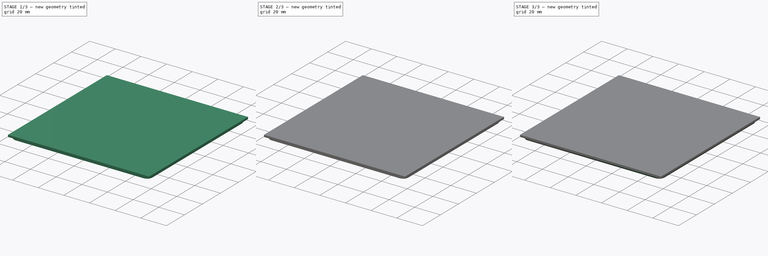
[diagram: build sequence overview — one tinted view per stage of 3, left to right]
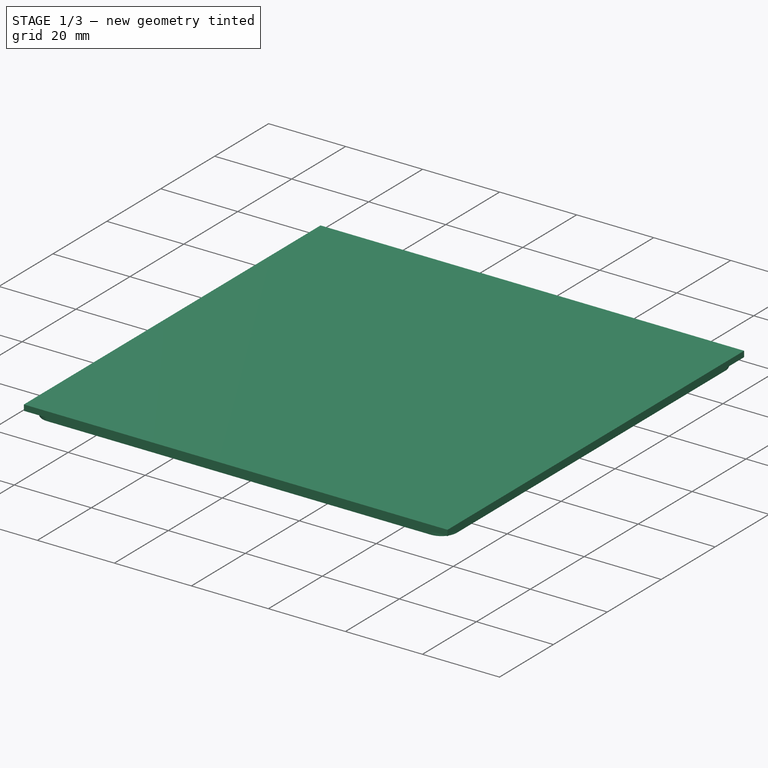
[diagram: stage 1 of 3 — iso view after this stage's code; geometry added in this stage tinted green]
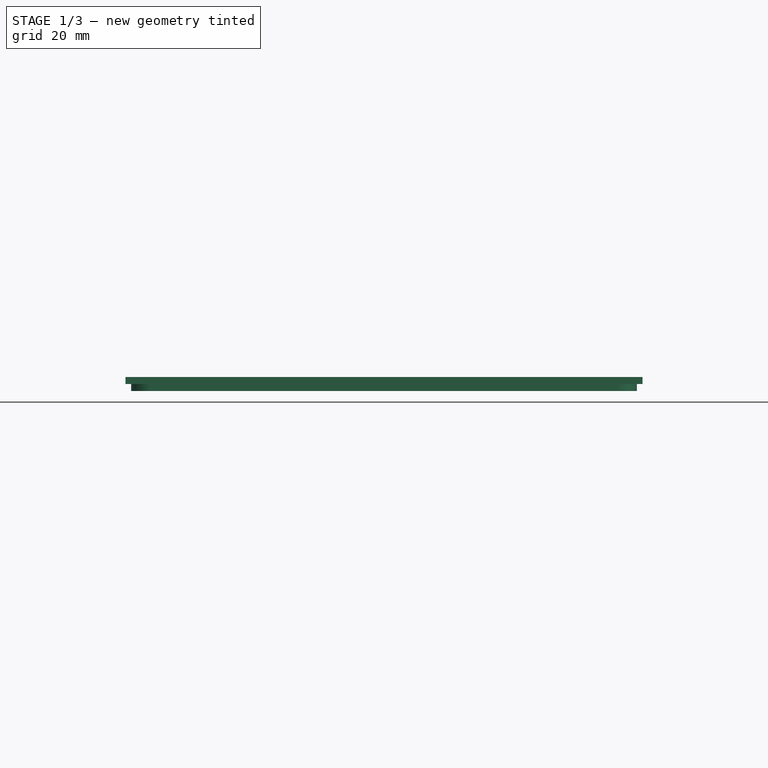
[diagram: stage 1 of 3 — front view after this stage's code; geometry added in this stage tinted green]
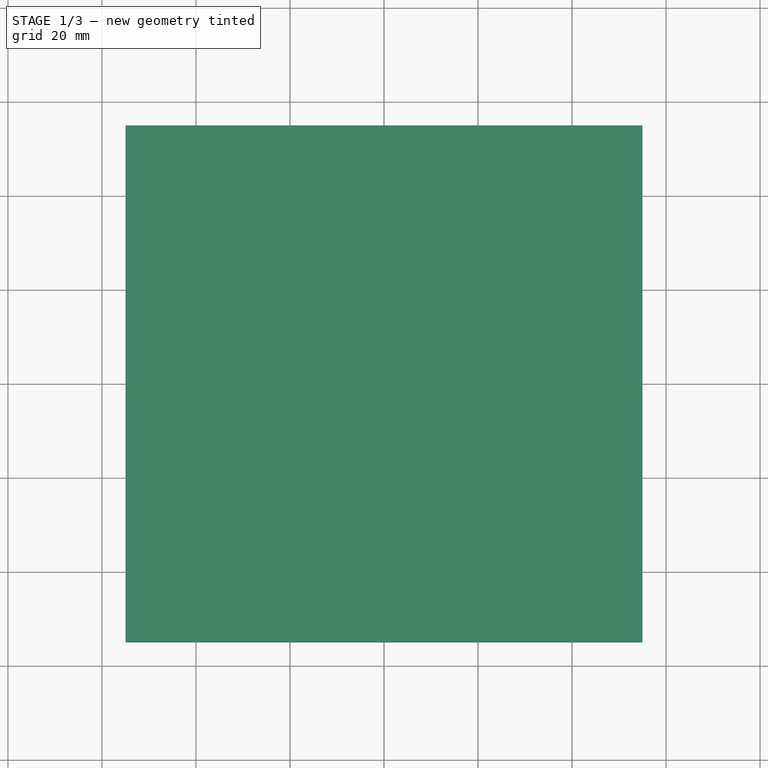
[diagram: stage 1 of 3 — top view after this stage's code; geometry added in this stage tinted green]
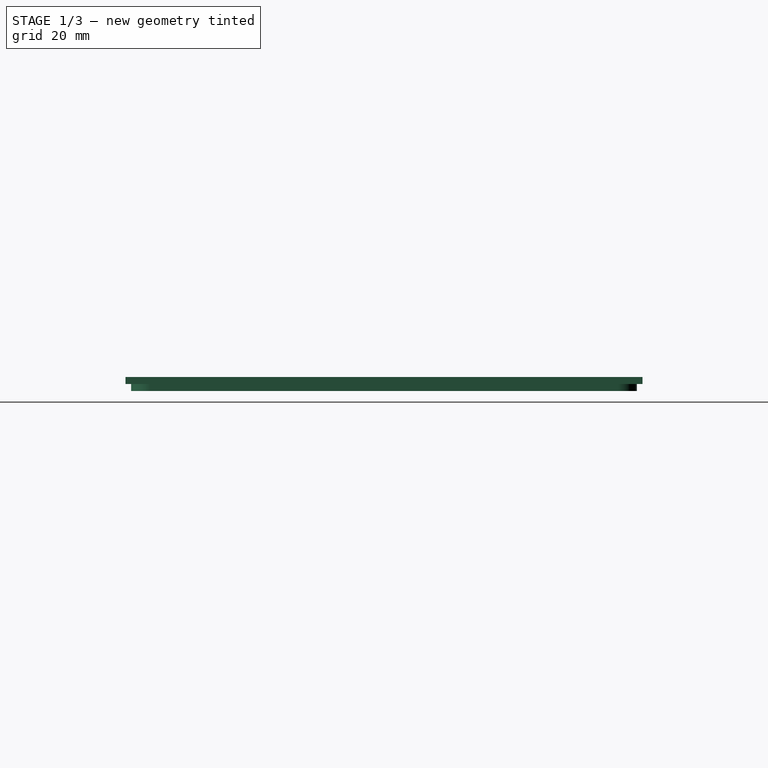
[diagram: stage 1 of 3 — right view after this stage's code; geometry added in this stage tinted green]
FCSTD DOCUMENT  (FreeCAD 0.18R16131 (Git))
Label: Po16 Outline 11cm
License: All rights reserved
LicenseURL: http://en.wikipedia.org/wiki/All_rights_reserved
objects: Sketcher::SketchObject×4, PartDesign::Pad×4, PartDesign::Draft×1, PartDesign::Body×1
note: 14 computed .brp shape members not serialized (recipe doc carries the construction recipe); baked Part::Feature solids carry a one-line shape summary decoded from their .brp

FEATURE [Sketcher::SketchObject] Sketch001
  MapMode = 5
  Placement = pos=(0,0,0) rot=(1,0,0;3.14159rad)
  expr: Constraints[17] = 106.6 + 1
  sketch-geometry (19):
    g0: LineSegment StartX=-49.8 StartY=53.8 StartZ=0 EndX=49.8 EndY=53.8 EndZ=0
    g1: LineSegment StartX=53.8 StartY=49.8 StartZ=0 EndX=53.8 EndY=-49.8 EndZ=0
    g2: LineSegment StartX=49.8 StartY=-53.8 StartZ=0 EndX=-49.8 EndY=-53.8 EndZ=0
    g3: LineSegment StartX=-53.8 StartY=-49.8 StartZ=0 EndX=-53.8 EndY=49.8 EndZ=0
    g4: ArcOfCircle CenterX=49.8 CenterY=49.8 CenterZ=0 NormalX=0 NormalY=0 NormalZ=1 AngleXU=0 Radius=4 StartAngle=7e-16 EndAngle=1.5708
    g5: ArcOfCircle CenterX=49.8 CenterY=-49.8 CenterZ=0 NormalX=0 NormalY=0 NormalZ=1 AngleXU=0 Radius=4 StartAngle=4.71239 EndAngle=6.28319
    g6: ArcOfCircle CenterX=-49.8 CenterY=-49.8 CenterZ=0 NormalX=0 NormalY=0 NormalZ=1 AngleXU=0 Radius=4 StartAngle=3.14159 EndAngle=4.71239
    g7: ArcOfCircle CenterX=-49.8 CenterY=49.8 CenterZ=0 NormalX=0 NormalY=0 NormalZ=1 AngleXU=0 Radius=4 StartAngle=1.5708 EndAngle=3.14159
    g8: LineSegment StartX=-49.8 StartY=52.8 StartZ=0 EndX=49.8 EndY=52.8 EndZ=0
    g9: LineSegment StartX=52.8 StartY=49.8 StartZ=0 EndX=52.8 EndY=-49.8 EndZ=0
    g10: LineSegment StartX=49.8 StartY=-52.8 StartZ=0 EndX=-49.8 EndY=-52.8 EndZ=0
    g11: LineSegment StartX=-52.8 StartY=-49.8 StartZ=0 EndX=-52.8 EndY=49.8 EndZ=0
    g12: ArcOfCircle CenterX=-49.8 CenterY=49.8 CenterZ=0 NormalX=0 NormalY=0 NormalZ=1 AngleXU=0 Radius=3 StartAngle=1.5708 EndAngle=3.14159
    g13: ArcOfCircle CenterX=49.8 CenterY=49.8 CenterZ=0 NormalX=0 NormalY=0 NormalZ=1 AngleXU=0 Radius=3 StartAngle=0 EndAngle=1.5708
    g14: ArcOfCircle CenterX=49.8 CenterY=-49.8 CenterZ=0 NormalX=0 NormalY=0 NormalZ=1 AngleXU=0 Radius=3 StartAngle=4.71239 EndAngle=6.28319
    g15: ArcOfCircle CenterX=-49.8 CenterY=-49.8 CenterZ=0 NormalX=0 NormalY=0 NormalZ=1 AngleXU=0 Radius=3 StartAngle=3.14159 EndAngle=4.71239
    g16: LineSegment [constr] StartX=-49.8 StartY=49.8 StartZ=0 EndX=0 EndY=0 EndZ=0
    g17: LineSegment [constr] StartX=0 StartY=0 StartZ=0 EndX=49.8 EndY=49.8 EndZ=0
    g18: LineSegment [constr] StartX=0 StartY=0 StartZ=0 EndX=-49.8 EndY=-49.8 EndZ=0
  constraints (44):
    c: Horizontal(g0)
    c: Horizontal(g2)
    c: Vertical(g1)
    c: Vertical(g3)
    c: Tangent(g0,g4) = 1.5708
    c: Tangent(g1,g4) = 1.5708
    c: Tangent(g1,g5) = 1.5708
    c: Tangent(g2,g5) = 1.5708
    c: Tangent(g2,g6) = 1.5708
    c: Tangent(g3,g6) = 1.5708
    c: Tangent(g3,g7) = 1.5708
    c: Tangent(g0,g7) = 1.5708
    c: Radius(g7) = 4
    c: Equal(g7,g4)
    c: Equal(g7,g5)
    c: Equal(g7,g6)
    c: Equal(g3,g0)
    c: DistanceX(g3,g1) = 107.6
    c: Horizontal(g8)
    c: Horizontal(g10)
    c: Vertical(g9)
    c: Vertical(g11)
    c: Tangent(g11,g12) = 1.5708
    c: Tangent(g8,g12) = 1.5708
    c: Tangent(g8,g13) = 1.5708
    c: Tangent(g9,g13) = 1.5708
    c: Tangent(g10,g14) = 1.5708
    c: Tangent(g9,g14) = 1.5708
    c: Tangent(g11,g15) = 1.5708
    c: Tangent(g10,g15) = 1.5708
    c: Equal(g15,g14)
    c: Equal(g15,g13)
    c: Equal(g15,g12)
    c: Coincident(g16,g7)
    c: Coincident(g16,g-1)
    c: Coincident(g17,g-1)
    c: Coincident(g17,g4)
    c: Coincident(g18,g-1)
    c: Coincident(g18,g6)
    c: Equal(g17,g16)
    c: Equal(g16,g18)
    c: Coincident(g12,g7)
    c: Coincident(g14,g5)
    c: DistanceY(g8,g0) = 1
FEATURE [Sketcher::SketchObject] Sketch
  MapMode = 5
  Support = -> [XY_Plane]
  sketch-geometry (5):
    g0: LineSegment StartX=-55 StartY=55 StartZ=0 EndX=-55 EndY=-55 EndZ=0
    g1: LineSegment StartX=-55 StartY=-55 StartZ=0 EndX=55 EndY=-55 EndZ=0
    g2: LineSegment StartX=55 StartY=-55 StartZ=0 EndX=55 EndY=55 EndZ=0
    g3: LineSegment StartX=55 StartY=55 StartZ=0 EndX=-55 EndY=55 EndZ=0
    g4: Circle [constr] CenterX=0 CenterY=0 CenterZ=0 NormalX=0 NormalY=0 NormalZ=1 AngleXU=0 Radius=77.7817
  constraints (14):
    c: Coincident(g0,g1)
    c: Coincident(g1,g2)
    c: Coincident(g2,g3)
    c: Coincident(g3,g0)
    c: Equal(g0,g1)
    c: Equal(g0,g2)
    c: Equal(g0,g3)
    c: PointOnObject(g0,g4)
    c: PointOnObject(g1,g4)
    c: PointOnObject(g2,g4)
    c: PointOnObject(g3,g4)
    c: Horizontal(g3)
    c: Coincident(g4,g-1)
    c: DistanceX(g3,g3) = 110
FEATURE [Sketcher::SketchObject] Sketch002
  MapMode = 5
  Placement = pos=(0,0,0) rot=(1,0,0;3.14159rad)
  sketch-geometry (79):
    g0: Circle CenterX=-40.005 CenterY=40.005 CenterZ=0 NormalX=0 NormalY=0 NormalZ=1 AngleXU=0 Radius=6
    g1: Circle CenterX=-40.005 CenterY=40.005 CenterZ=0 NormalX=0 NormalY=0 NormalZ=1 AngleXU=0 Radius=5
    g2: Circle CenterX=-40.005 CenterY=49.505 CenterZ=0 NormalX=0 NormalY=0 NormalZ=1 AngleXU=0 Radius=1.5
    g3: LineSegment [constr] StartX=-40.005 StartY=49.505 StartZ=0 EndX=-40.005 EndY=40.005 EndZ=0
    g4: Circle CenterX=-13.335 CenterY=40.005 CenterZ=0 NormalX=0 NormalY=0 NormalZ=1 AngleXU=0 Radius=6
    g5: Circle CenterX=-13.335 CenterY=40.005 CenterZ=0 NormalX=0 NormalY=0 NormalZ=1 AngleXU=0 Radius=5
    g6: Circle CenterX=-13.335 CenterY=49.505 CenterZ=0 NormalX=0 NormalY=0 NormalZ=1 AngleXU=0 Radius=1.5
    g7: LineSegment [constr] StartX=-13.335 StartY=49.505 StartZ=0 EndX=-13.335 EndY=40.005 EndZ=0
    g8: LineSegment [constr] StartX=-40.005 StartY=40.005 StartZ=0 EndX=-13.335 EndY=40.005 EndZ=0
    g9: Circle CenterX=13.335 CenterY=40.005 CenterZ=0 NormalX=0 NormalY=0 NormalZ=1 AngleXU=0 Radius=6
    g10: Circle CenterX=13.335 CenterY=40.005 CenterZ=0 NormalX=0 NormalY=0 NormalZ=1 AngleXU=0 Radius=5
    g11: Circle CenterX=13.335 CenterY=49.505 CenterZ=0 NormalX=0 NormalY=0 NormalZ=1 AngleXU=0 Radius=1.5
    g12: LineSegment [constr] StartX=13.335 StartY=49.505 StartZ=0 EndX=13.335 EndY=40.005 EndZ=0
    g13: LineSegment [constr] StartX=-13.335 StartY=40.005 StartZ=0 EndX=13.335 EndY=40.005 EndZ=0
    g14: Circle CenterX=40.005 CenterY=40.005 CenterZ=0 NormalX=0 NormalY=0 NormalZ=1 AngleXU=0 Radius=6
    g15: Circle CenterX=40.005 CenterY=40.005 CenterZ=0 NormalX=0 NormalY=0 NormalZ=1 AngleXU=0 Radius=5
    g16: Circle CenterX=40.005 CenterY=49.505 CenterZ=0 NormalX=0 NormalY=0 NormalZ=1 AngleXU=0 Radius=1.5
    g17: LineSegment [constr] StartX=40.005 StartY=49.505 StartZ=0 EndX=40.005 EndY=40.005 EndZ=0
    g18: LineSegment [constr] StartX=13.335 StartY=40.005 StartZ=0 EndX=40.005 EndY=40.005 EndZ=0
    g19: Circle CenterX=-40.005 CenterY=13.335 CenterZ=0 NormalX=0 NormalY=0 NormalZ=1 AngleXU=0 Radius=6
    g20: Circle CenterX=-40.005 CenterY=13.335 CenterZ=0 NormalX=0 NormalY=0 NormalZ=1 AngleXU=0 Radius=5
    g21: Circle CenterX=-40.005 CenterY=22.835 CenterZ=0 NormalX=0 NormalY=0 NormalZ=1 AngleXU=0 Radius=1.5
    g22: LineSegment [constr] StartX=-40.005 StartY=22.835 StartZ=0 EndX=-40.005 EndY=13.335 EndZ=0
    g23: LineSegment [constr] StartX=-40.005 StartY=40.005 StartZ=0 EndX=-40.005 EndY=13.335 EndZ=0
    g24: Circle CenterX=-13.335 CenterY=13.335 CenterZ=0 NormalX=0 NormalY=0 NormalZ=1 AngleXU=0 Radius=6
    g25: Circle CenterX=-13.335 CenterY=13.335 CenterZ=0 NormalX=0 NormalY=0 NormalZ=1 AngleXU=0 Radius=5
    g26: Circle CenterX=-13.335 CenterY=22.835 CenterZ=0 NormalX=0 NormalY=0 NormalZ=1 AngleXU=0 Radius=1.5
    g27: LineSegment [constr] StartX=-13.335 StartY=22.835 StartZ=0 EndX=-13.335 EndY=13.335 EndZ=0
    g28: LineSegment [constr] StartX=-40.005 StartY=13.335 StartZ=0 EndX=-13.335 EndY=13.335 EndZ=0
    g29: Circle CenterX=13.335 CenterY=13.335 CenterZ=0 NormalX=0 NormalY=0 NormalZ=1 AngleXU=0 Radius=6
    g30: Circle CenterX=13.335 CenterY=13.335 CenterZ=0 NormalX=0 NormalY=0 NormalZ=1 AngleXU=0 Radius=5
    g31: Circle CenterX=13.335 CenterY=22.835 CenterZ=0 NormalX=0 NormalY=0 NormalZ=1 AngleXU=0 Radius=1.5
    g32: LineSegment [constr] StartX=13.335 StartY=22.835 StartZ=0 EndX=13.335 EndY=13.335 EndZ=0
    g33: LineSegment [constr] StartX=-13.335 StartY=13.335 StartZ=0 EndX=13.335 EndY=13.335 EndZ=0
    g34: Circle CenterX=40.005 CenterY=13.335 CenterZ=0 NormalX=0 NormalY=0 NormalZ=1 AngleXU=0 Radius=6
    g35: Circle CenterX=40.005 CenterY=13.335 CenterZ=0 NormalX=0 NormalY=0 NormalZ=1 AngleXU=0 Radius=5
    g36: Circle CenterX=40.005 CenterY=22.835 CenterZ=0 NormalX=0 NormalY=0 NormalZ=1 AngleXU=0 Radius=1.5
    g37: LineSegment [constr] StartX=40.005 StartY=22.835 StartZ=0 EndX=40.005 EndY=13.335 EndZ=0
    g38: LineSegment [constr] StartX=13.335 StartY=13.335 StartZ=0 EndX=40.005 EndY=13.335 EndZ=0
    g39: Circle CenterX=-40.005 CenterY=-13.335 CenterZ=0 NormalX=0 NormalY=0 NormalZ=1 AngleXU=0 Radius=6
    g40: Circle CenterX=-40.005 CenterY=-13.335 CenterZ=0 NormalX=0 NormalY=0 NormalZ=1 AngleXU=0 Radius=5
    g41: Circle CenterX=-40.005 CenterY=-3.835 CenterZ=0 NormalX=0 NormalY=0 NormalZ=1 AngleXU=0 Radius=1.5
    g42: LineSegment [constr] StartX=-40.005 StartY=-3.835 StartZ=0 EndX=-40.005 EndY=-13.335 EndZ=0
    g43: LineSegment [constr] StartX=-40.005 StartY=13.335 StartZ=0 EndX=-40.005 EndY=-13.335 EndZ=0
    g44: Circle CenterX=-13.335 CenterY=-13.335 CenterZ=0 NormalX=0 NormalY=0 NormalZ=1 AngleXU=0 Radius=6
    g45: Circle CenterX=-13.335 CenterY=-13.335 CenterZ=0 NormalX=0 NormalY=0 NormalZ=1 AngleXU=0 Radius=5
    g46: Circle CenterX=-13.335 CenterY=-3.835 CenterZ=0 NormalX=0 NormalY=0 NormalZ=1 AngleXU=0 Radius=1.5
    g47: LineSegment [constr] StartX=-13.335 StartY=-3.835 StartZ=0 EndX=-13.335 EndY=-13.335 EndZ=0
    g48: LineSegment [constr] StartX=-40.005 StartY=-13.335 StartZ=0 EndX=-13.335 EndY=-13.335 EndZ=0
    g49: Circle CenterX=13.335 CenterY=-13.335 CenterZ=0 NormalX=0 NormalY=0 NormalZ=1 AngleXU=0 Radius=6
    g50: Circle CenterX=13.335 CenterY=-13.335 CenterZ=0 NormalX=0 NormalY=0 NormalZ=1 AngleXU=0 Radius=5
    g51: Circle CenterX=13.335 CenterY=-3.835 CenterZ=0 NormalX=0 NormalY=0 NormalZ=1 AngleXU=0 Radius=1.5
    g52: LineSegment [constr] StartX=13.335 StartY=-3.835 StartZ=0 EndX=13.335 EndY=-13.335 EndZ=0
    g53: LineSegment [constr] StartX=-13.335 StartY=-13.335 StartZ=0 EndX=13.335 EndY=-13.335 EndZ=0
    g54: Circle CenterX=40.005 CenterY=-13.335 CenterZ=0 NormalX=0 NormalY=0 NormalZ=1 AngleXU=0 Radius=6
    g55: Circle CenterX=40.005 CenterY=-13.335 CenterZ=0 NormalX=0 NormalY=0 NormalZ=1 AngleXU=0 Radius=5
    g56: Circle CenterX=40.005 CenterY=-3.835 CenterZ=0 NormalX=0 NormalY=0 NormalZ=1 AngleXU=0 Radius=1.5
    g57: LineSegment [constr] StartX=40.005 StartY=-3.835 StartZ=0 EndX=40.005 EndY=-13.335 EndZ=0
    g58: LineSegment [constr] StartX=13.335 StartY=-13.335 StartZ=0 EndX=40.005 EndY=-13.335 EndZ=0
    g59: Circle CenterX=-40.005 CenterY=-40.005 CenterZ=0 NormalX=0 NormalY=0 NormalZ=1 AngleXU=0 Radius=6
    g60: Circle CenterX=-40.005 CenterY=-40.005 CenterZ=0 NormalX=0 NormalY=0 NormalZ=1 AngleXU=0 Radius=5
    g61: Circle CenterX=-40.005 CenterY=-30.505 CenterZ=0 NormalX=0 NormalY=0 NormalZ=1 AngleXU=0 Radius=1.5
    g62: LineSegment [constr] StartX=-40.005 StartY=-30.505 StartZ=0 EndX=-40.005 EndY=-40.005 EndZ=0
    g63: LineSegment [constr] StartX=-40.005 StartY=-13.335 StartZ=0 EndX=-40.005 EndY=-40.005 EndZ=0
    g64: Circle CenterX=-13.335 CenterY=-40.005 CenterZ=0 NormalX=0 NormalY=0 NormalZ=1 AngleXU=0 Radius=6
    g65: Circle CenterX=-13.335 CenterY=-40.005 CenterZ=0 NormalX=0 NormalY=0 NormalZ=1 AngleXU=0 Radius=5
    g66: Circle CenterX=-13.335 CenterY=-30.505 CenterZ=0 NormalX=0 NormalY=0 NormalZ=1 AngleXU=0 Radius=1.5
    g67: LineSegment [constr] StartX=-13.335 StartY=-30.505 StartZ=0 EndX=-13.335 EndY=-40.005 EndZ=0
    g68: LineSegment [constr] StartX=-40.005 StartY=-40.005 StartZ=0 EndX=-13.335 EndY=-40.005 EndZ=0
    g69: Circle CenterX=13.335 CenterY=-40.005 CenterZ=0 NormalX=0 NormalY=0 NormalZ=1 AngleXU=0 Radius=6
    g70: Circle CenterX=13.335 CenterY=-40.005 CenterZ=0 NormalX=0 NormalY=0 NormalZ=1 AngleXU=0 Radius=5
    g71: Circle CenterX=13.335 CenterY=-30.505 CenterZ=0 NormalX=0 NormalY=0 NormalZ=1 AngleXU=0 Radius=1.5
    g72: LineSegment [constr] StartX=13.335 StartY=-30.505 StartZ=0 EndX=13.335 EndY=-40.005 EndZ=0
    g73: LineSegment [constr] StartX=-13.335 StartY=-40.005 StartZ=0 EndX=13.335 EndY=-40.005 EndZ=0
    g74: Circle CenterX=40.005 CenterY=-40.005 CenterZ=0 NormalX=0 NormalY=0 NormalZ=1 AngleXU=0 Radius=6
    g75: Circle CenterX=40.005 CenterY=-40.005 CenterZ=0 NormalX=0 NormalY=0 NormalZ=1 AngleXU=0 Radius=5
    g76: Circle CenterX=40.005 CenterY=-30.505 CenterZ=0 NormalX=0 NormalY=0 NormalZ=1 AngleXU=0 Radius=1.5
    g77: LineSegment [constr] StartX=40.005 StartY=-30.505 StartZ=0 EndX=40.005 EndY=-40.005 EndZ=0
    g78: LineSegment [constr] StartX=13.335 StartY=-40.005 StartZ=0 EndX=40.005 EndY=-40.005 EndZ=0
  constraints (190):
    c: DistanceX(g0,g-1) = 40.005
    c: Coincident(g1,g0)
    c: DistanceY(g-1,g0) = 40.005
    c: Radius(g2) = 1.5
    c: Coincident(g3,g2)
    c: Coincident(g3,g0)
    c: Vertical(g3)
    c: DistanceY(g0,g2) = 9.5
    c: Coincident(g5,g4)
    c: Coincident(g7,g6)
    c: Coincident(g7,g4)
    c: Vertical(g7)
    c: DistanceY(g4,g6) = 9.5
    c: Coincident(g0,g8)
    c: Coincident(g4,g8)
    c: Distance(g8) = 26.67
    c: Angle(g8) = 0
    c: Coincident(g10,g9)
    c: Coincident(g12,g11)
    c: Coincident(g12,g9)
    c: Vertical(g12)
    c: DistanceY(g9,g11) = 9.5
    c: Coincident(g4,g13)
    c: Coincident(g9,g13)
    c: Equal(g8,g13)
    c: Parallel(g13,g8)
    c: Coincident(g15,g14)
    c: Coincident(g17,g16)
    c: Coincident(g17,g14)
    c: Vertical(g17)
    c: DistanceY(g14,g16) = 9.5
    c: Coincident(g9,g18)
    c: Coincident(g14,g18)
    c: Equal(g8,g18)
    c: Parallel(g18,g8)
    c: Coincident(g20,g19)
    c: Coincident(g22,g21)
    c: Coincident(g22,g19)
    c: Vertical(g22)
    c: DistanceY(g19,g21) = 9.5
    c: Coincident(g0,g23)
    c: Coincident(g19,g23)
    c: Distance(g23) = 26.67
    c: Perpendicular(g23,g8)
    c: Coincident(g25,g24)
    c: Coincident(g27,g26)
    c: Coincident(g27,g24)
    c: Vertical(g27)
    c: DistanceY(g24,g26) = 9.5
    c: Coincident(g19,g28)
    c: Coincident(g24,g28)
    c: Equal(g8,g28)
    c: Parallel(g28,g8)
    c: Coincident(g30,g29)
    c: Coincident(g32,g31)
    c: Coincident(g32,g29)
    c: Vertical(g32)
    c: DistanceY(g29,g31) = 9.5
    c: Coincident(g24,g33)
    c: Coincident(g29,g33)
    c: Equal(g8,g33)
    c: Parallel(g33,g8)
    c: Coincident(g35,g34)
    c: Coincident(g37,g36)
    c: Coincident(g37,g34)
    c: Vertical(g37)
    c: DistanceY(g34,g36) = 9.5
    c: Coincident(g29,g38)
    c: Coincident(g34,g38)
    c: Equal(g8,g38)
    c: Parallel(g38,g8)
    c: Coincident(g40,g39)
    c: Coincident(g42,g41)
    c: Coincident(g42,g39)
    c: Vertical(g42)
    c: DistanceY(g39,g41) = 9.5
    c: Coincident(g19,g43)
    c: Coincident(g39,g43)
    c: Equal(g23,g43)
    c: Perpendicular(g43,g8)
    c: Coincident(g45,g44)
    c: Coincident(g47,g46)
    c: Coincident(g47,g44)
    c: Vertical(g47)
    c: DistanceY(g44,g46) = 9.5
    c: Coincident(g39,g48)
    c: Coincident(g44,g48)
    c: Equal(g8,g48)
    c: Parallel(g48,g8)
    c: Coincident(g50,g49)
    c: Coincident(g52,g51)
    c: Coincident(g52,g49)
    c: Vertical(g52)
    c: DistanceY(g49,g51) = 9.5
    c: Coincident(g44,g53)
    c: Coincident(g49,g53)
    c: Equal(g8,g53)
    c: Parallel(g53,g8)
    c: Coincident(g55,g54)
    c: Coincident(g57,g56)
    c: Coincident(g57,g54)
    c: Vertical(g57)
    c: DistanceY(g54,g56) = 9.5
    c: Coincident(g49,g58)
    c: Coincident(g54,g58)
    c: Equal(g8,g58)
    c: Parallel(g58,g8)
    c: Coincident(g60,g59)
    c: Coincident(g62,g61)
    c: Coincident(g62,g59)
    c: Vertical(g62)
    c: DistanceY(g59,g61) = 9.5
    c: Coincident(g39,g63)
    c: Coincident(g59,g63)
    c: Equal(g23,g63)
    c: Perpendicular(g63,g8)
    c: Coincident(g65,g64)
    c: Coincident(g67,g66)
    c: Coincident(g67,g64)
    c: Vertical(g67)
    c: DistanceY(g64,g66) = 9.5
    c: Coincident(g59,g68)
    c: Coincident(g64,g68)
    c: Equal(g8,g68)
    c: Parallel(g68,g8)
    c: Coincident(g70,g69)
    c: Coincident(g72,g71)
    c: Coincident(g72,g69)
    c: Vertical(g72)
    c: DistanceY(g69,g71) = 9.5
    c: Coincident(g64,g73)
    c: Coincident(g69,g73)
    c: Equal(g8,g73)
    c: Parallel(g73,g8)
    c: Coincident(g75,g74)
    c: Coincident(g77,g76)
    c: Coincident(g77,g74)
    c: Vertical(g77)
    c: DistanceY(g74,g76) = 9.5
    c: Coincident(g69,g78)
    c: Coincident(g74,g78)
    c: Equal(g8,g78)
    c: Parallel(g78,g8)
    c: Radius(g1) = 5
    c: Equal(g1,g5)
    c: Equal(g1,g10)
    c: Equal(g1,g15)
    c: Equal(g1,g35)
    c: Equal(g1,g30)
    c: Equal(g1,g25)
    c: Equal(g1,g20)
    c: Equal(g1,g40)
    c: Equal(g1,g45)
    c: Equal(g1,g50)
    c: Equal(g1,g55)
    c: Equal(g1,g60)
    c: Equal(g1,g65)
    c: Equal(g1,g70)
    c: Equal(g1,g75)
    c: Radius(g0) = 6
    c: Equal(g0,g4)
    c: Equal(g0,g9)
    c: Equal(g0,g14)
    c: Equal(g0,g34)
    c: Equal(g0,g29)
    c: Equal(g0,g24)
    c: Equal(g0,g19)
    c: Equal(g0,g39)
    c: Equal(g0,g44)
    c: Equal(g0,g49)
    c: Equal(g0,g54)
    c: Equal(g0,g59)
    c: Equal(g0,g64)
    c: Equal(g0,g74)
    c: Equal(g0,g69)
    c: Equal(g76,g71)
    c: Equal(g71,g66)
    c: Equal(g66,g61)
    c: Equal(g61,g41)
    c: Equal(g41,g46)
    c: Equal(g46,g51)
    c: Equal(g51,g56)
    c: Equal(g56,g36)
    c: Equal(g36,g31)
    c: Equal(g31,g26)
    c: Equal(g26,g21)
    c: Equal(g21,g16)
    c: Equal(g16,g11)
    c: Equal(g11,g6)
    c: Equal(g6,g2)
FEATURE [PartDesign::Pad] Pad
  Length = 1.5
  Length2 = 100
  Profile = -> Sketch
  Type = 0
FEATURE [PartDesign::Pad] Pad001
  BaseFeature = -> Pad
  Length = 1.5
  Length2 = 100
  Profile = -> Sketch001
  Type = 0
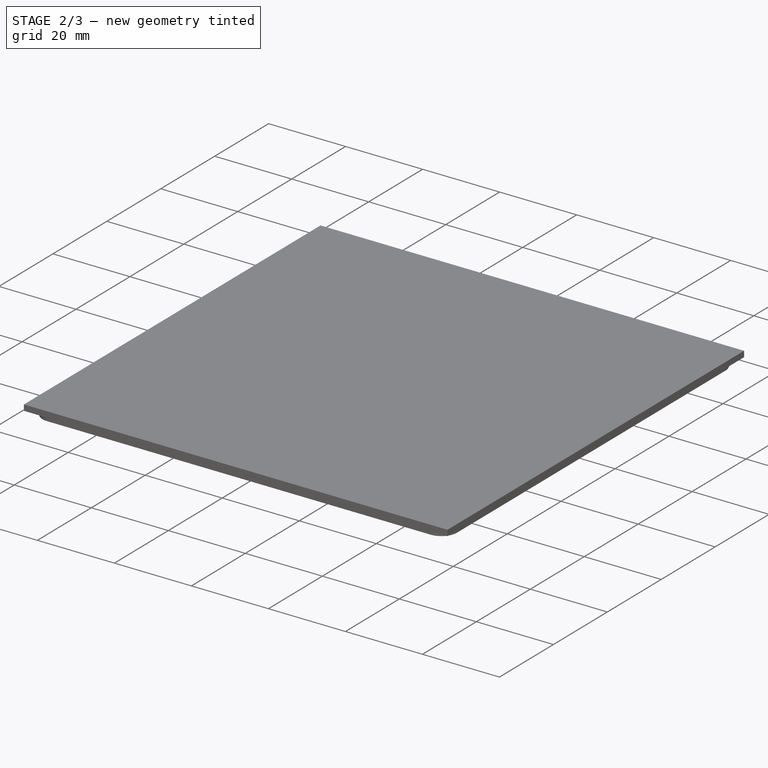
[diagram: stage 2 of 3 — iso view after this stage's code; geometry added in this stage tinted green]
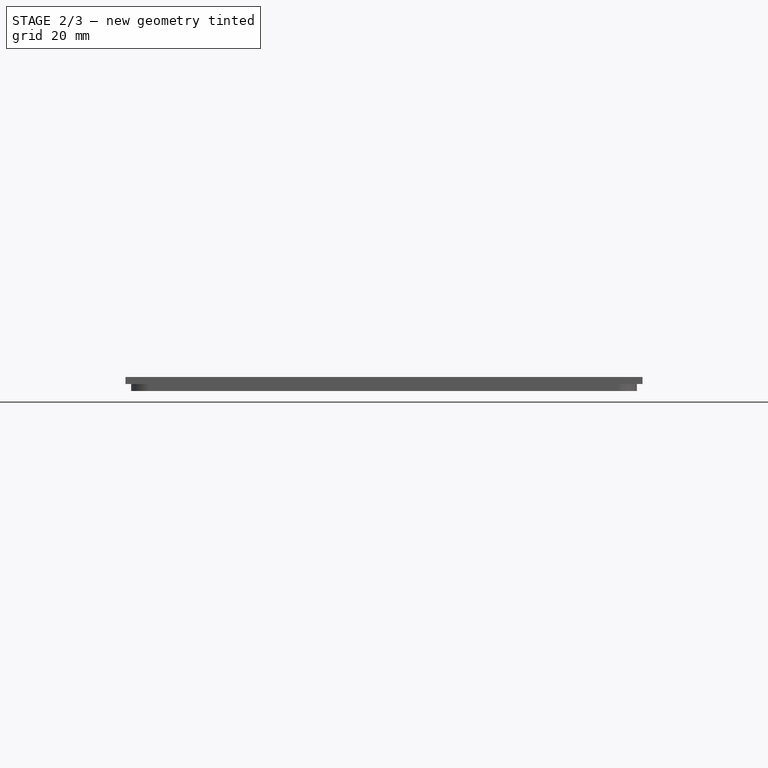
[diagram: stage 2 of 3 — front view after this stage's code; geometry added in this stage tinted green]
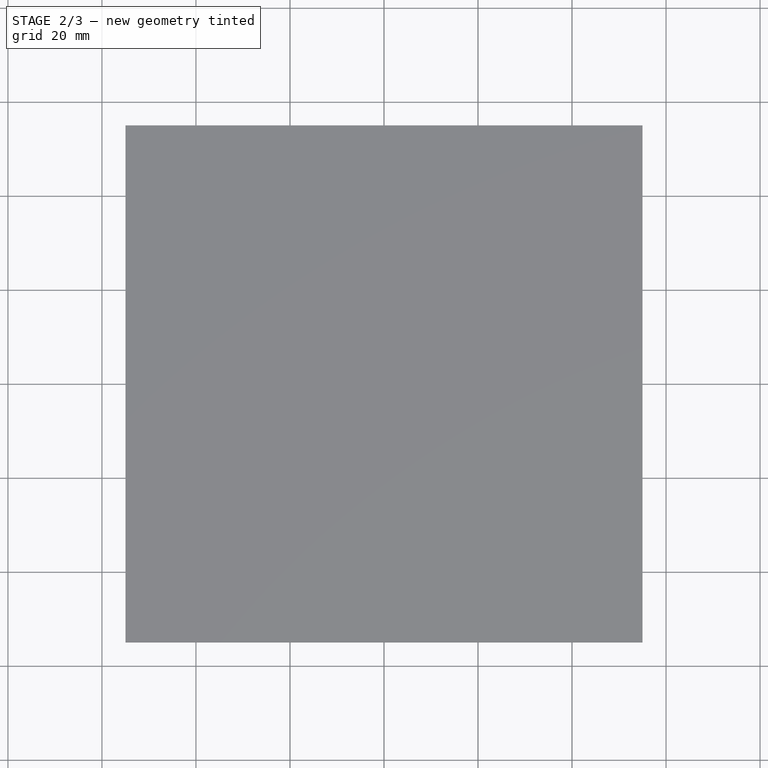
[diagram: stage 2 of 3 — top view after this stage's code; geometry added in this stage tinted green]
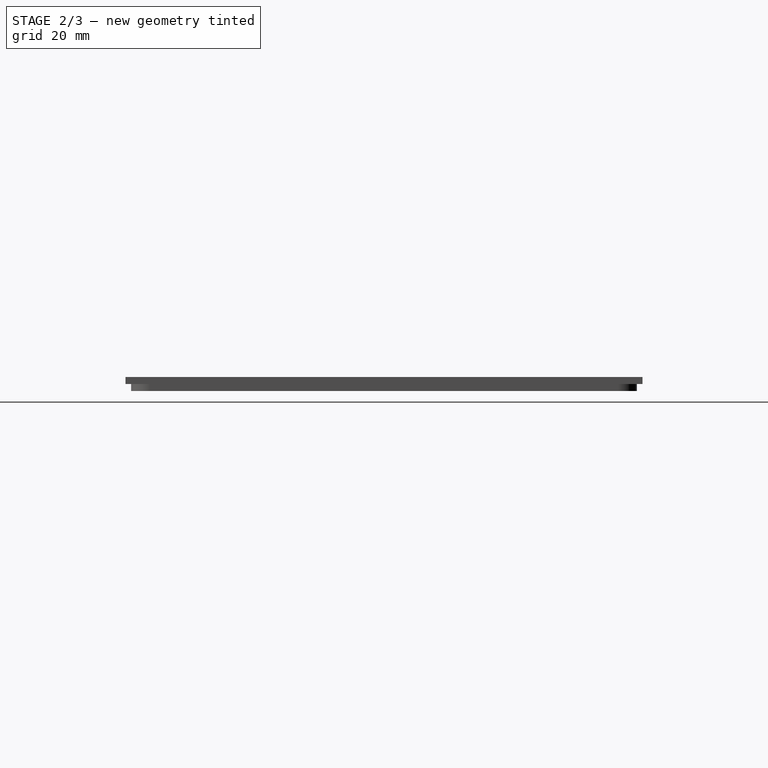
[diagram: stage 2 of 3 — right view after this stage's code; geometry added in this stage tinted green]
FEATURE [PartDesign::Pad] Pad002
  BaseFeature = -> Pad001
  Length = 1.5
  Length2 = 100
  Profile = -> Sketch002
  Type = 0
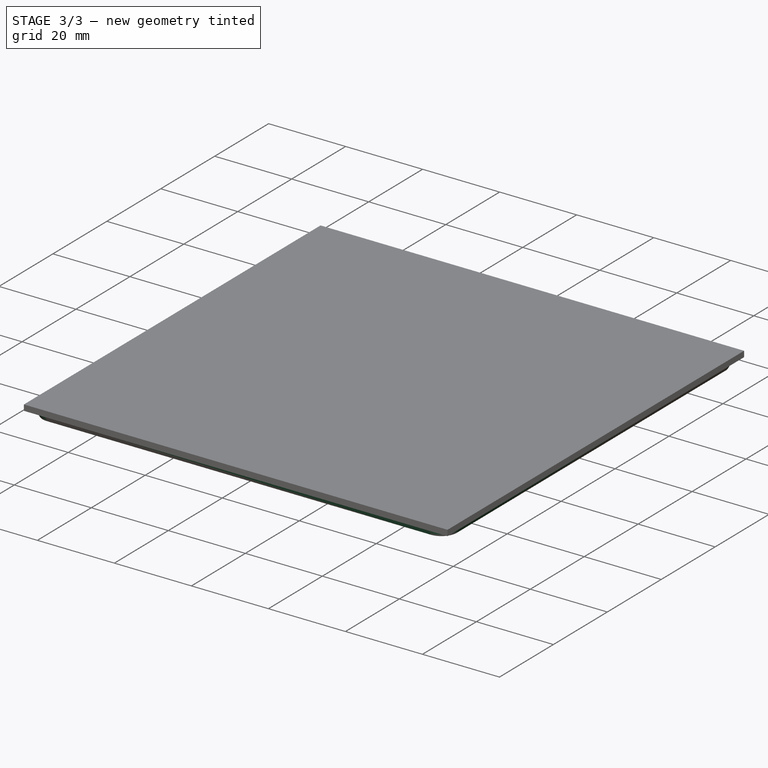
[diagram: stage 3 of 3 — iso view after this stage's code; geometry added in this stage tinted green]
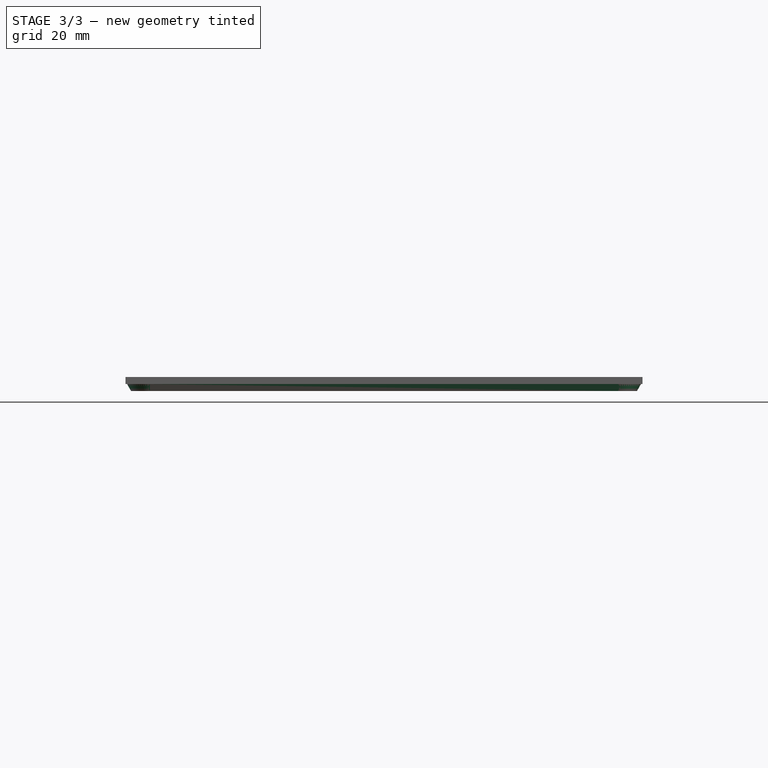
[diagram: stage 3 of 3 — front view after this stage's code; geometry added in this stage tinted green]
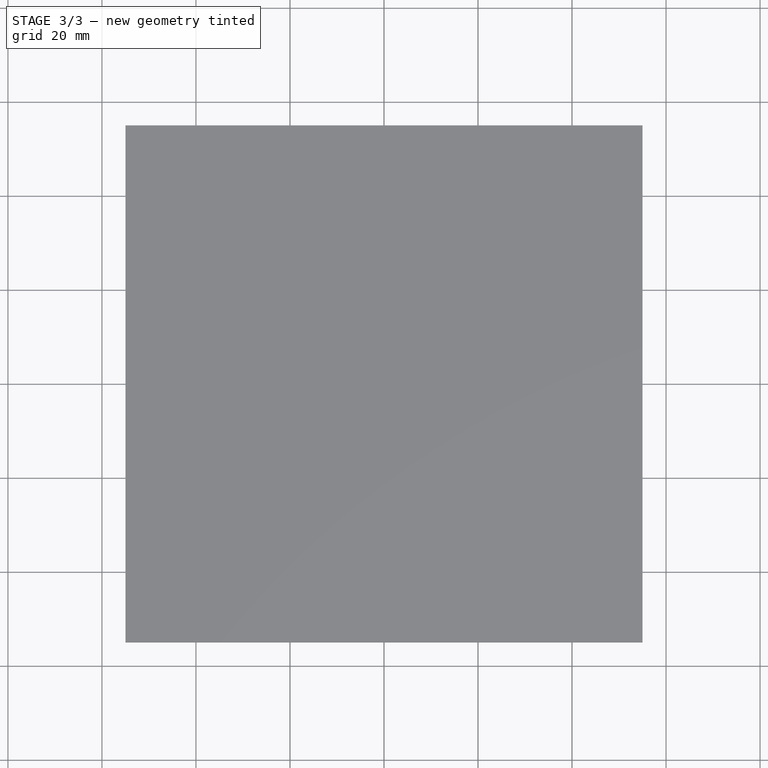
[diagram: stage 3 of 3 — top view after this stage's code; geometry added in this stage tinted green]
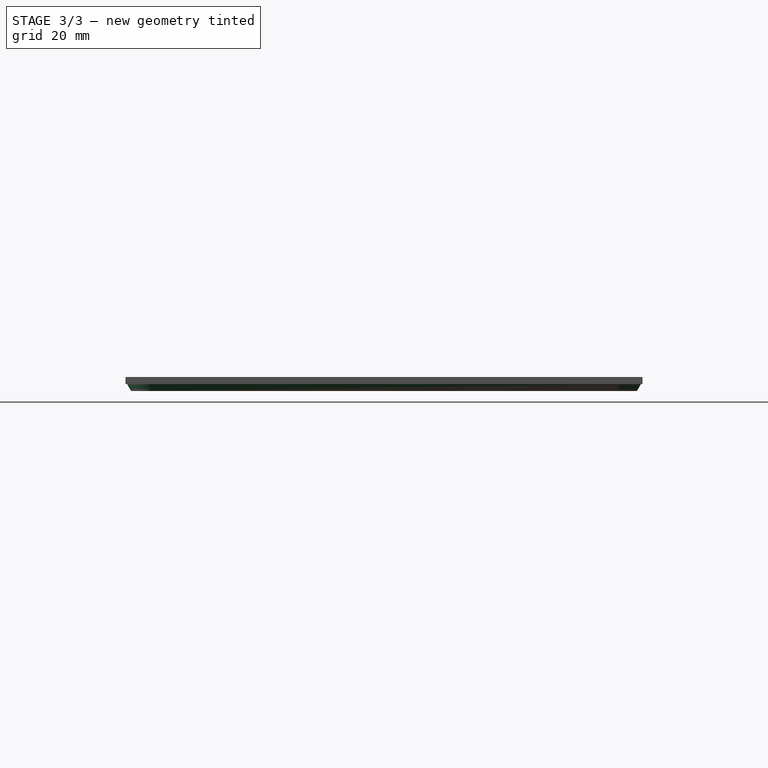
[diagram: stage 3 of 3 — right view after this stage's code; geometry added in this stage tinted green]
FEATURE [Sketcher::SketchObject] Sketch003
  ExternalGeometry = -> [Pad002]
  MapMode = 5
  Placement = pos=(0,0,0) rot=(1,0,0;3.14159rad)
  Support = -> [Pad002]
  sketch-geometry (143):
    g0: LineSegment StartX=-36.8527 StartY=35.4704 StartZ=0 EndX=-38.9013 EndY=37.9118 EndZ=0
    g1: LineSegment StartX=-38.8644 StartY=38.3345 StartZ=0 EndX=-38.5579 EndY=38.5916 EndZ=0
    g2: LineSegment StartX=-38.1353 StartY=38.5546 StartZ=0 EndX=-36.0866 EndY=36.1131 EndZ=0
    g3: LineSegment StartX=-36.0866 StartY=36.1131 StartZ=0 EndX=-36.8527 EndY=35.4704 EndZ=0
    g4: LineSegment [constr] StartX=-38.6715 StartY=38.1047 StartZ=0 EndX=-40.005 EndY=40.005 EndZ=0
    g5: LineSegment [constr] StartX=-40.005 StartY=40.005 StartZ=0 EndX=-38.3651 EndY=38.3618 EndZ=0
    g6: ArcOfCircle CenterX=-38.6715 CenterY=38.1047 CenterZ=0 NormalX=0 NormalY=0 NormalZ=1 AngleXU=0 Radius=0.3 StartAngle=2.26893 EndAngle=3.83972
    g7: ArcOfCircle CenterX=-38.3651 CenterY=38.3618 CenterZ=0 NormalX=0 NormalY=0 NormalZ=1 AngleXU=0 Radius=0.3 StartAngle=0.698132 EndAngle=2.26893
    g8: LineSegment StartX=-10.1827 StartY=35.4704 StartZ=0 EndX=-12.2313 EndY=37.9118 EndZ=0
    g9: LineSegment StartX=-12.1944 StartY=38.3345 StartZ=0 EndX=-11.8879 EndY=38.5916 EndZ=0
    g10: LineSegment StartX=-11.4653 StartY=38.5546 StartZ=0 EndX=-9.41665 EndY=36.1131 EndZ=0
    g11: LineSegment StartX=-9.41665 StartY=36.1131 StartZ=0 EndX=-10.1827 EndY=35.4704 EndZ=0
    g12: LineSegment [constr] StartX=-12.0015 StartY=38.1047 StartZ=0 EndX=-13.335 EndY=40.005 EndZ=0
    g13: LineSegment [constr] StartX=-13.335 StartY=40.005 StartZ=0 EndX=-11.6951 EndY=38.3618 EndZ=0
    g14: ArcOfCircle CenterX=-12.0015 CenterY=38.1047 CenterZ=0 NormalX=0 NormalY=0 NormalZ=1 AngleXU=0 Radius=0.3 StartAngle=2.26893 EndAngle=3.83972
    g15: ArcOfCircle CenterX=-11.6951 CenterY=38.3618 CenterZ=0 NormalX=0 NormalY=0 NormalZ=1 AngleXU=0 Radius=0.3 StartAngle=0.698132 EndAngle=2.26893
    g16: LineSegment [constr] StartX=-36.8527 StartY=35.4704 StartZ=0 EndX=-10.1827 EndY=35.4704 EndZ=0
    g17: LineSegment StartX=16.4873 StartY=35.4704 StartZ=0 EndX=14.4387 EndY=37.9118 EndZ=0
    g18: LineSegment StartX=14.4756 StartY=38.3345 StartZ=0 EndX=14.7821 EndY=38.5916 EndZ=0
    g19: LineSegment StartX=15.2047 StartY=38.5546 StartZ=0 EndX=17.2534 EndY=36.1131 EndZ=0
    g20: LineSegment StartX=17.2534 StartY=36.1131 StartZ=0 EndX=16.4873 EndY=35.4704 EndZ=0
    g21: LineSegment [constr] StartX=14.6685 StartY=38.1047 StartZ=0 EndX=13.335 EndY=40.005 EndZ=0
    g22: LineSegment [constr] StartX=13.335 StartY=40.005 StartZ=0 EndX=14.9749 EndY=38.3618 EndZ=0
    g23: ArcOfCircle CenterX=14.6685 CenterY=38.1047 CenterZ=0 NormalX=0 NormalY=0 NormalZ=1 AngleXU=0 Radius=0.3 StartAngle=2.26893 EndAngle=3.83972
    g24: ArcOfCircle CenterX=14.9749 CenterY=38.3618 CenterZ=0 NormalX=0 NormalY=0 NormalZ=1 AngleXU=0 Radius=0.3 StartAngle=0.698132 EndAngle=2.26893
    g25: LineSegment [constr] StartX=-10.1827 StartY=35.4704 StartZ=0 EndX=16.4873 EndY=35.4704 EndZ=0
    g26: LineSegment StartX=43.1573 StartY=35.4704 StartZ=0 EndX=41.1087 EndY=37.9118 EndZ=0
    g27: LineSegment StartX=41.1456 StartY=38.3345 StartZ=0 EndX=41.4521 EndY=38.5916 EndZ=0
    g28: LineSegment StartX=41.8747 StartY=38.5546 StartZ=0 EndX=43.9234 EndY=36.1131 EndZ=0
    g29: LineSegment StartX=43.9234 StartY=36.1131 StartZ=0 EndX=43.1573 EndY=35.4704 EndZ=0
    g30: LineSegment [constr] StartX=41.3385 StartY=38.1047 StartZ=0 EndX=40.005 EndY=40.005 EndZ=0
    g31: LineSegment [constr] StartX=40.005 StartY=40.005 StartZ=0 EndX=41.6449 EndY=38.3618 EndZ=0
    g32: ArcOfCircle CenterX=41.3385 CenterY=38.1047 CenterZ=0 NormalX=0 NormalY=0 NormalZ=1 AngleXU=0 Radius=0.3 StartAngle=2.26893 EndAngle=3.83972
    g33: ArcOfCircle CenterX=41.6449 CenterY=38.3618 CenterZ=0 NormalX=0 NormalY=0 NormalZ=1 AngleXU=0 Radius=0.3 StartAngle=0.698132 EndAngle=2.26893
    g34: LineSegment [constr] StartX=16.4873 StartY=35.4704 StartZ=0 EndX=43.1573 EndY=35.4704 EndZ=0
    g35: LineSegment StartX=-36.8527 StartY=8.80036 StartZ=0 EndX=-38.9013 EndY=11.2418 EndZ=0
    g36: LineSegment StartX=-38.8644 StartY=11.6645 StartZ=0 EndX=-38.5579 EndY=11.9216 EndZ=0
    g37: LineSegment StartX=-38.1353 StartY=11.8846 StartZ=0 EndX=-36.0866 EndY=9.44315 EndZ=0
    g38: LineSegment StartX=-36.0866 StartY=9.44315 StartZ=0 EndX=-36.8527 EndY=8.80036 EndZ=0
    g39: LineSegment [constr] StartX=-38.6715 StartY=11.4347 StartZ=0 EndX=-40.005 EndY=13.335 EndZ=0
    g40: LineSegment [constr] StartX=-40.005 StartY=13.335 StartZ=0 EndX=-38.3651 EndY=11.6918 EndZ=0
    g41: ArcOfCircle CenterX=-38.6715 CenterY=11.4347 CenterZ=0 NormalX=0 NormalY=0 NormalZ=1 AngleXU=0 Radius=0.3 StartAngle=2.26893 EndAngle=3.83972
    g42: ArcOfCircle CenterX=-38.3651 CenterY=11.6918 CenterZ=0 NormalX=0 NormalY=0 NormalZ=1 AngleXU=0 Radius=0.3 StartAngle=0.698132 EndAngle=2.26893
    g43: LineSegment [constr] StartX=-36.8527 StartY=35.4704 StartZ=0 EndX=-36.8527 EndY=8.80036 EndZ=0
    g44: LineSegment StartX=-10.1827 StartY=8.80036 StartZ=0 EndX=-12.2313 EndY=11.2418 EndZ=0
    g45: LineSegment StartX=-12.1944 StartY=11.6645 StartZ=0 EndX=-11.8879 EndY=11.9216 EndZ=0
    g46: LineSegment StartX=-11.4653 StartY=11.8846 StartZ=0 EndX=-9.41665 EndY=9.44315 EndZ=0
    g47: LineSegment StartX=-9.41665 StartY=9.44315 StartZ=0 EndX=-10.1827 EndY=8.80036 EndZ=0
    g48: LineSegment [constr] StartX=-12.0015 StartY=11.4347 StartZ=0 EndX=-13.335 EndY=13.335 EndZ=0
    g49: LineSegment [constr] StartX=-13.335 StartY=13.335 StartZ=0 EndX=-11.6951 EndY=11.6918 EndZ=0
    g50: ArcOfCircle CenterX=-12.0015 CenterY=11.4347 CenterZ=0 NormalX=0 NormalY=0 NormalZ=1 AngleXU=0 Radius=0.3 StartAngle=2.26893 EndAngle=3.83972
    g51: ArcOfCircle CenterX=-11.6951 CenterY=11.6918 CenterZ=0 NormalX=0 NormalY=0 NormalZ=1 AngleXU=0 Radius=0.3 StartAngle=0.698132 EndAngle=2.26893
    g52: LineSegment [constr] StartX=-36.8527 StartY=8.80036 StartZ=0 EndX=-10.1827 EndY=8.80036 EndZ=0
    g53: LineSegment StartX=16.4873 StartY=8.80036 StartZ=0 EndX=14.4387 EndY=11.2418 EndZ=0
    g54: LineSegment StartX=14.4756 StartY=11.6645 StartZ=0 EndX=14.7821 EndY=11.9216 EndZ=0
    g55: LineSegment StartX=15.2047 StartY=11.8846 StartZ=0 EndX=17.2534 EndY=9.44315 EndZ=0
    g56: LineSegment StartX=17.2534 StartY=9.44315 StartZ=0 EndX=16.4873 EndY=8.80036 EndZ=0
    g57: LineSegment [constr] StartX=14.6685 StartY=11.4347 StartZ=0 EndX=13.335 EndY=13.335 EndZ=0
    g58: LineSegment [constr] StartX=13.335 StartY=13.335 StartZ=0 EndX=14.9749 EndY=11.6918 EndZ=0
    g59: ArcOfCircle CenterX=14.6685 CenterY=11.4347 CenterZ=0 NormalX=0 NormalY=0 NormalZ=1 AngleXU=0 Radius=0.3 StartAngle=2.26893 EndAngle=3.83972
    g60: ArcOfCircle CenterX=14.9749 CenterY=11.6918 CenterZ=0 NormalX=0 NormalY=0 NormalZ=1 AngleXU=0 Radius=0.3 StartAngle=0.698132 EndAngle=2.26893
    g61: LineSegment [constr] StartX=-10.1827 StartY=8.80036 StartZ=0 EndX=16.4873 EndY=8.80036 EndZ=0
    g62: LineSegment StartX=43.1573 StartY=8.80036 StartZ=0 EndX=41.1087 EndY=11.2418 EndZ=0
    g63: LineSegment StartX=41.1456 StartY=11.6645 StartZ=0 EndX=41.4521 EndY=11.9216 EndZ=0
    g64: LineSegment StartX=41.8747 StartY=11.8846 StartZ=0 EndX=43.9234 EndY=9.44315 EndZ=0
    g65: LineSegment StartX=43.9234 StartY=9.44315 StartZ=0 EndX=43.1573 EndY=8.80036 EndZ=0
    g66: LineSegment [constr] StartX=41.3385 StartY=11.4347 StartZ=0 EndX=40.005 EndY=13.335 EndZ=0
    g67: LineSegment [constr] StartX=40.005 StartY=13.335 StartZ=0 EndX=41.6449 EndY=11.6918 EndZ=0
    g68: ArcOfCircle CenterX=41.3385 CenterY=11.4347 CenterZ=0 NormalX=0 NormalY=0 NormalZ=1 AngleXU=0 Radius=0.3 StartAngle=2.26893 EndAngle=3.83972
    g69: ArcOfCircle CenterX=41.6449 CenterY=11.6918 CenterZ=0 NormalX=0 NormalY=0 NormalZ=1 AngleXU=0 Radius=0.3 StartAngle=0.698132 EndAngle=2.26893
    g70: LineSegment [constr] StartX=16.4873 StartY=8.80036 StartZ=0 EndX=43.1573 EndY=8.80036 EndZ=0
    g71: LineSegment StartX=-36.8527 StartY=-17.8696 StartZ=0 EndX=-38.9013 EndY=-15.4282 EndZ=0
    g72: LineSegment StartX=-38.8644 StartY=-15.0055 StartZ=0 EndX=-38.5579 EndY=-14.7484 EndZ=0
    g73: LineSegment StartX=-38.1353 StartY=-14.7854 StartZ=0 EndX=-36.0866 EndY=-17.2269 EndZ=0
    g74: LineSegment StartX=-36.0866 StartY=-17.2269 StartZ=0 EndX=-36.8527 EndY=-17.8696 EndZ=0
    g75: LineSegment [constr] StartX=-38.6715 StartY=-15.2353 StartZ=0 EndX=-40.005 EndY=-13.335 EndZ=0
    g76: LineSegment [constr] StartX=-40.005 StartY=-13.335 StartZ=0 EndX=-38.3651 EndY=-14.9782 EndZ=0
    g77: ArcOfCircle CenterX=-38.6715 CenterY=-15.2353 CenterZ=0 NormalX=0 NormalY=0 NormalZ=1 AngleXU=0 Radius=0.3 StartAngle=2.26893 EndAngle=3.83972
    g78: ArcOfCircle CenterX=-38.3651 CenterY=-14.9782 CenterZ=0 NormalX=0 NormalY=0 NormalZ=1 AngleXU=0 Radius=0.3 StartAngle=0.698132 EndAngle=2.26893
    g79: LineSegment [constr] StartX=-36.8527 StartY=8.80036 StartZ=0 EndX=-36.8527 EndY=-17.8696 EndZ=0
    g80: LineSegment StartX=-10.1827 StartY=-17.8696 StartZ=0 EndX=-12.2313 EndY=-15.4282 EndZ=0
    g81: LineSegment StartX=-12.1944 StartY=-15.0055 StartZ=0 EndX=-11.8879 EndY=-14.7484 EndZ=0
    g82: LineSegment StartX=-11.4653 StartY=-14.7854 StartZ=0 EndX=-9.41665 EndY=-17.2269 EndZ=0
    g83: LineSegment StartX=-9.41665 StartY=-17.2269 StartZ=0 EndX=-10.1827 EndY=-17.8696 EndZ=0
    g84: LineSegment [constr] StartX=-12.0015 StartY=-15.2353 StartZ=0 EndX=-13.335 EndY=-13.335 EndZ=0
    g85: LineSegment [constr] StartX=-13.335 StartY=-13.335 StartZ=0 EndX=-11.6951 EndY=-14.9782 EndZ=0
    g86: ArcOfCircle CenterX=-12.0015 CenterY=-15.2353 CenterZ=0 NormalX=0 NormalY=0 NormalZ=1 AngleXU=0 Radius=0.3 StartAngle=2.26893 EndAngle=3.83972
    g87: ArcOfCircle CenterX=-11.6951 CenterY=-14.9782 CenterZ=0 NormalX=0 NormalY=0 NormalZ=1 AngleXU=0 Radius=0.3 StartAngle=0.698132 EndAngle=2.26893
    g88: LineSegment [constr] StartX=-36.8527 StartY=-17.8696 StartZ=0 EndX=-10.1827 EndY=-17.8696 EndZ=0
    g89: LineSegment StartX=16.4873 StartY=-17.8696 StartZ=0 EndX=14.4387 EndY=-15.4282 EndZ=0
    g90: LineSegment StartX=14.4756 StartY=-15.0055 StartZ=0 EndX=14.7821 EndY=-14.7484 EndZ=0
    g91: LineSegment StartX=15.2047 StartY=-14.7854 StartZ=0 EndX=17.2534 EndY=-17.2269 EndZ=0
    g92: LineSegment StartX=17.2534 StartY=-17.2269 StartZ=0 EndX=16.4873 EndY=-17.8696 EndZ=0
    g93: LineSegment [constr] StartX=14.6685 StartY=-15.2353 StartZ=0 EndX=13.335 EndY=-13.335 EndZ=0
    g94: LineSegment [constr] StartX=13.335 StartY=-13.335 StartZ=0 EndX=14.9749 EndY=-14.9782 EndZ=0
    g95: ArcOfCircle CenterX=14.6685 CenterY=-15.2353 CenterZ=0 NormalX=0 NormalY=0 NormalZ=1 AngleXU=0 Radius=0.3 StartAngle=2.26893 EndAngle=3.83972
    g96: ArcOfCircle CenterX=14.9749 CenterY=-14.9782 CenterZ=0 NormalX=0 NormalY=0 NormalZ=1 AngleXU=0 Radius=0.3 StartAngle=0.698132 EndAngle=2.26893
    g97: LineSegment [constr] StartX=-10.1827 StartY=-17.8696 StartZ=0 EndX=16.4873 EndY=-17.8696 EndZ=0
    g98: LineSegment StartX=43.1573 StartY=-17.8696 StartZ=0 EndX=41.1087 EndY=-15.4282 EndZ=0
    g99: LineSegment StartX=41.1456 StartY=-15.0055 StartZ=0 EndX=41.4521 EndY=-14.7484 EndZ=0
    g100: LineSegment StartX=41.8747 StartY=-14.7854 StartZ=0 EndX=43.9234 EndY=-17.2269 EndZ=0
    g101: LineSegment StartX=43.9234 StartY=-17.2269 StartZ=0 EndX=43.1573 EndY=-17.8696 EndZ=0
    g102: LineSegment [constr] StartX=41.3385 StartY=-15.2353 StartZ=0 EndX=40.005 EndY=-13.335 EndZ=0
    g103: LineSegment [constr] StartX=40.005 StartY=-13.335 StartZ=0 EndX=41.6449 EndY=-14.9782 EndZ=0
    g104: ArcOfCircle CenterX=41.3385 CenterY=-15.2353 CenterZ=0 NormalX=0 NormalY=0 NormalZ=1 AngleXU=0 Radius=0.3 StartAngle=2.26893 EndAngle=3.83972
    g105: ArcOfCircle CenterX=41.6449 CenterY=-14.9782 CenterZ=0 NormalX=0 NormalY=0 NormalZ=1 AngleXU=0 Radius=0.3 StartAngle=0.698132 EndAngle=2.26893
    g106: LineSegment [constr] StartX=16.4873 StartY=-17.8696 StartZ=0 EndX=43.1573 EndY=-17.8696 EndZ=0
    g107: LineSegment StartX=-36.8527 StartY=-44.5396 StartZ=0 EndX=-38.9013 EndY=-42.0982 EndZ=0
    g108: LineSegment StartX=-38.8644 StartY=-41.6755 StartZ=0 EndX=-38.5579 EndY=-41.4184 EndZ=0
    g109: LineSegment StartX=-38.1353 StartY=-41.4554 StartZ=0 EndX=-36.0866 EndY=-43.8969 EndZ=0
    g110: LineSegment StartX=-36.0866 StartY=-43.8969 StartZ=0 EndX=-36.8527 EndY=-44.5396 EndZ=0
    g111: LineSegment [constr] StartX=-38.6715 StartY=-41.9053 StartZ=0 EndX=-40.005 EndY=-40.005 EndZ=0
    g112: LineSegment [constr] StartX=-40.005 StartY=-40.005 StartZ=0 EndX=-38.3651 EndY=-41.6482 EndZ=0
    g113: ArcOfCircle CenterX=-38.6715 CenterY=-41.9053 CenterZ=0 NormalX=0 NormalY=0 NormalZ=1 AngleXU=0 Radius=0.3 StartAngle=2.26893 EndAngle=3.83972
    g114: ArcOfCircle CenterX=-38.3651 CenterY=-41.6482 CenterZ=0 NormalX=0 NormalY=0 NormalZ=1 AngleXU=0 Radius=0.3 StartAngle=0.698132 EndAngle=2.26893
    g115: LineSegment [constr] StartX=-36.8527 StartY=-17.8696 StartZ=0 EndX=-36.8527 EndY=-44.5396 EndZ=0
    g116: LineSegment StartX=-10.1827 StartY=-44.5396 StartZ=0 EndX=-12.2313 EndY=-42.0982 EndZ=0
    g117: LineSegment StartX=-12.1944 StartY=-41.6755 StartZ=0 EndX=-11.8879 EndY=-41.4184 EndZ=0
    g118: LineSegment StartX=-11.4653 StartY=-41.4554 StartZ=0 EndX=-9.41665 EndY=-43.8969 EndZ=0
    g119: LineSegment StartX=-9.41665 StartY=-43.8969 StartZ=0 EndX=-10.1827 EndY=-44.5396 EndZ=0
    g120: LineSegment [constr] StartX=-12.0015 StartY=-41.9053 StartZ=0 EndX=-13.335 EndY=-40.005 EndZ=0
    g121: LineSegment [constr] StartX=-13.335 StartY=-40.005 StartZ=0 EndX=-11.6951 EndY=-41.6482 EndZ=0
    g122: ArcOfCircle CenterX=-12.0015 CenterY=-41.9053 CenterZ=0 NormalX=0 NormalY=0 NormalZ=1 AngleXU=0 Radius=0.3 StartAngle=2.26893 EndAngle=3.83972
    g123: ArcOfCircle CenterX=-11.6951 CenterY=-41.6482 CenterZ=0 NormalX=0 NormalY=0 NormalZ=1 AngleXU=0 Radius=0.3 StartAngle=0.698132 EndAngle=2.26893
    g124: LineSegment [constr] StartX=-36.8527 StartY=-44.5396 StartZ=0 EndX=-10.1827 EndY=-44.5396 EndZ=0
    g125: LineSegment StartX=16.4873 StartY=-44.5396 StartZ=0 EndX=14.4387 EndY=-42.0982 EndZ=0
    g126: LineSegment StartX=14.4756 StartY=-41.6755 StartZ=0 EndX=14.7821 EndY=-41.4184 EndZ=0
    g127: LineSegment StartX=15.2047 StartY=-41.4554 StartZ=0 EndX=17.2534 EndY=-43.8969 EndZ=0
    g128: LineSegment StartX=17.2534 StartY=-43.8969 StartZ=0 EndX=16.4873 EndY=-44.5396 EndZ=0
    g129: LineSegment [constr] StartX=14.6685 StartY=-41.9053 StartZ=0 EndX=13.335 EndY=-40.005 EndZ=0
    g130: LineSegment [constr] StartX=13.335 StartY=-40.005 StartZ=0 EndX=14.9749 EndY=-41.6482 EndZ=0
    g131: ArcOfCircle CenterX=14.6685 CenterY=-41.9053 CenterZ=0 NormalX=0 NormalY=0 NormalZ=1 AngleXU=0 Radius=0.3 StartAngle=2.26893 EndAngle=3.83972
    g132: ArcOfCircle CenterX=14.9749 CenterY=-41.6482 CenterZ=0 NormalX=0 NormalY=0 NormalZ=1 AngleXU=0 Radius=0.3 StartAngle=0.698132 EndAngle=2.26893
    g133: LineSegment [constr] StartX=-10.1827 StartY=-44.5396 StartZ=0 EndX=16.4873 EndY=-44.5396 EndZ=0
    g134: LineSegment StartX=43.1573 StartY=-44.5396 StartZ=0 EndX=41.1087 EndY=-42.0982 EndZ=0
    g135: LineSegment StartX=41.1456 StartY=-41.6755 StartZ=0 EndX=41.4521 EndY=-41.4184 EndZ=0
    g136: LineSegment StartX=41.8747 StartY=-41.4554 StartZ=0 EndX=43.9234 EndY=-43.8969 EndZ=0
    g137: LineSegment StartX=43.9234 StartY=-43.8969 StartZ=0 EndX=43.1573 EndY=-44.5396 EndZ=0
    g138: LineSegment [constr] StartX=41.3385 StartY=-41.9053 StartZ=0 EndX=40.005 EndY=-40.005 EndZ=0
    g139: LineSegment [constr] StartX=40.005 StartY=-40.005 StartZ=0 EndX=41.6449 EndY=-41.6482 EndZ=0
    g140: ArcOfCircle CenterX=41.3385 CenterY=-41.9053 CenterZ=0 NormalX=0 NormalY=0 NormalZ=1 AngleXU=0 Radius=0.3 StartAngle=2.26893 EndAngle=3.83972
    g141: ArcOfCircle CenterX=41.6449 CenterY=-41.6482 CenterZ=0 NormalX=0 NormalY=0 NormalZ=1 AngleXU=0 Radius=0.3 StartAngle=0.698132 EndAngle=2.26893
    g142: LineSegment [constr] StartX=16.4873 StartY=-44.5396 StartZ=0 EndX=43.1573 EndY=-44.5396 EndZ=0
  constraints (365):
    c: Coincident(g2,g3)
    c: Coincident(g3,g0)
    c: Perpendicular(g0,g1)
    c: Perpendicular(g2,g1)
    c: Perpendicular(g0,g3)
    c: Coincident(g4,g-3)
    c: Coincident(g5,g4)
    c: Equal(g5,g4)
    c: Angle(g2,g-2) = -0.698132
    c: Distance(g4,g3) = 5.5
    c: Tangent(g0,g6) = 1.5708
    c: Tangent(g1,g6) = 1.5708
    c: Tangent(g1,g7) = 1.5708
    c: Tangent(g2,g7) = 1.5708
    c: Coincident(g4,g6)
    c: Coincident(g5,g7)
    c: Equal(g6,g7)
    c: Distance(g0,g2) = 1
    c: Radius(g6) = 0.3
    c: Distance(g1,g0) = 3.5
    c: Coincident(g10,g11)
    c: Coincident(g11,g8)
    c: Perpendicular(g8,g9)
    c: Perpendicular(g10,g9)
    c: Perpendicular(g8,g11)
    c: Coincident(g13,g12)
    c: Equal(g13,g12)
    c: Distance(g12,g11) = 5.5
    c: Tangent(g8,g14) = 1.5708
    c: Tangent(g9,g14) = 1.5708
    c: Tangent(g9,g15) = 1.5708
    c: Tangent(g10,g15) = 1.5708
    c: Coincident(g12,g14)
    c: Coincident(g13,g15)
    c: Equal(g14,g15)
    c: Distance(g8,g10) = 1
    c: Radius(g14) = 0.3
    c: Distance(g9,g8) = 3.5
    c: Coincident(g0,g16)
    c: Coincident(g8,g16)
    c: Distance(g16) = 26.67
    c: Angle(g16) = 0
    c: Coincident(g19,g20)
    c: Coincident(g20,g17)
    c: Perpendicular(g17,g18)
    c: Perpendicular(g19,g18)
    c: Perpendicular(g17,g20)
    c: Coincident(g22,g21)
    c: Equal(g22,g21)
    c: Distance(g21,g20) = 5.5
    c: Tangent(g17,g23) = 1.5708
    c: Tangent(g18,g23) = 1.5708
    c: Tangent(g18,g24) = 1.5708
    c: Tangent(g19,g24) = 1.5708
    c: Coincident(g21,g23)
    c: Coincident(g22,g24)
    c: Equal(g23,g24)
    c: Distance(g17,g19) = 1
    c: Radius(g23) = 0.3
    c: Distance(g18,g17) = 3.5
    c: Coincident(g8,g25)
    c: Coincident(g17,g25)
    c: Equal(g16,g25)
    c: Parallel(g25,g16)
    c: Coincident(g28,g29)
    c: Coincident(g29,g26)
    c: Perpendicular(g26,g27)
    c: Perpendicular(g28,g27)
    c: Perpendicular(g26,g29)
    c: Coincident(g31,g30)
    c: Equal(g31,g30)
    c: Distance(g30,g29) = 5.5
    c: Tangent(g26,g32) = 1.5708
    c: Tangent(g27,g32) = 1.5708
    c: Tangent(g27,g33) = 1.5708
    c: Tangent(g28,g33) = 1.5708
    c: Coincident(g30,g32)
    c: Coincident(g31,g33)
    c: Equal(g32,g33)
    c: Distance(g26,g28) = 1
    c: Radius(g32) = 0.3
    c: Distance(g27,g26) = 3.5
    c: Coincident(g17,g34)
    c: Coincident(g26,g34)
    c: Equal(g16,g34)
    c: Parallel(g34,g16)
    c: Coincident(g37,g38)
    c: Coincident(g38,g35)
    c: Perpendicular(g35,g36)
    c: Perpendicular(g37,g36)
    c: Perpendicular(g35,g38)
    c: Coincident(g40,g39)
    c: Equal(g40,g39)
    c: Distance(g39,g38) = 5.5
    c: Tangent(g35,g41) = 1.5708
    c: Tangent(g36,g41) = 1.5708
    c: Tangent(g36,g42) = 1.5708
    c: Tangent(g37,g42) = 1.5708
    c: Coincident(g39,g41)
    c: Coincident(g40,g42)
    c: Equal(g41,g42)
    c: Distance(g35,g37) = 1
    c: Radius(g41) = 0.3
    c: Distance(g36,g35) = 3.5
    c: Coincident(g0,g43)
    c: Coincident(g35,g43)
    c: Equal(g43,g16)
    c: Perpendicular(g43,g16)
    c: Coincident(g46,g47)
    c: Coincident(g47,g44)
    c: Perpendicular(g44,g45)
    c: Perpendicular(g46,g45)
    c: Perpendicular(g44,g47)
    c: Coincident(g49,g48)
    c: Equal(g49,g48)
    c: Distance(g48,g47) = 5.5
    c: Tangent(g44,g50) = 1.5708
    c: Tangent(g45,g50) = 1.5708
    c: Tangent(g45,g51) = 1.5708
    c: Tangent(g46,g51) = 1.5708
    c: Coincident(g48,g50)
    c: Coincident(g49,g51)
    c: Equal(g50,g51)
    c: Distance(g44,g46) = 1
    c: Radius(g50) = 0.3
    c: Distance(g45,g44) = 3.5
    c: Coincident(g35,g52)
    c: Coincident(g44,g52)
    c: Equal(g16,g52)
    c: Parallel(g52,g16)
    c: Coincident(g55,g56)
    c: Coincident(g56,g53)
    c: Perpendicular(g53,g54)
    c: Perpendicular(g55,g54)
    c: Perpendicular(g53,g56)
    c: Coincident(g58,g57)
    c: Equal(g58,g57)
    c: Distance(g57,g56) = 5.5
    c: Tangent(g53,g59) = 1.5708
    c: Tangent(g54,g59) = 1.5708
    c: Tangent(g54,g60) = 1.5708
    c: Tangent(g55,g60) = 1.5708
    c: Coincident(g57,g59)
    c: Coincident(g58,g60)
    c: Equal(g59,g60)
    c: Distance(g53,g55) = 1
    c: Radius(g59) = 0.3
    c: Distance(g54,g53) = 3.5
    c: Coincident(g44,g61)
    c: Coincident(g53,g61)
    c: Equal(g16,g61)
    c: Parallel(g61,g16)
    c: Coincident(g64,g65)
    c: Coincident(g65,g62)
    c: Perpendicular(g62,g63)
    c: Perpendicular(g64,g63)
    c: Perpendicular(g62,g65)
    c: Coincident(g67,g66)
    c: Equal(g67,g66)
    c: Distance(g66,g65) = 5.5
    c: Tangent(g62,g68) = 1.5708
    c: Tangent(g63,g68) = 1.5708
    c: Tangent(g63,g69) = 1.5708
    c: Tangent(g64,g69) = 1.5708
    c: Coincident(g66,g68)
    c: Coincident(g67,g69)
    c: Equal(g68,g69)
    c: Distance(g62,g64) = 1
    c: Radius(g68) = 0.3
    c: Distance(g63,g62) = 3.5
    c: Coincident(g53,g70)
    c: Coincident(g62,g70)
    c: Equal(g16,g70)
    c: Parallel(g70,g16)
    c: Coincident(g73,g74)
    c: Coincident(g74,g71)
    c: Perpendicular(g71,g72)
    c: Perpendicular(g73,g72)
    c: Perpendicular(g71,g74)
    c: Coincident(g76,g75)
    c: Equal(g76,g75)
    c: Distance(g75,g74) = 5.5
    c: Tangent(g71,g77) = 1.5708
    c: Tangent(g72,g77) = 1.5708
    c: Tangent(g72,g78) = 1.5708
    c: Tangent(g73,g78) = 1.5708
    c: Coincident(g75,g77)
    c: Coincident(g76,g78)
    c: Equal(g77,g78)
    c: Distance(g71,g73) = 1
    c: Radius(g77) = 0.3
    c: Distance(g72,g71) = 3.5
    c: Coincident(g35,g79)
    c: Coincident(g71,g79)
    c: Equal(g43,g79)
    c: Perpendicular(g79,g16)
    c: Coincident(g82,g83)
    c: Coincident(g83,g80)
    c: Perpendicular(g80,g81)
    c: Perpendicular(g82,g81)
    c: Perpendicular(g80,g83)
    c: Coincident(g85,g84)
    c: Equal(g85,g84)
    c: Distance(g84,g83) = 5.5
    c: Tangent(g80,g86) = 1.5708
    c: Tangent(g81,g86) = 1.5708
    c: Tangent(g81,g87) = 1.5708
    c: Tangent(g82,g87) = 1.5708
    c: Coincident(g84,g86)
    c: Coincident(g85,g87)
    c: Equal(g86,g87)
    c: Distance(g80,g82) = 1
    c: Radius(g86) = 0.3
    c: Distance(g81,g80) = 3.5
    c: Coincident(g71,g88)
    c: Coincident(g80,g88)
    c: Equal(g16,g88)
    c: Parallel(g88,g16)
    c: Coincident(g91,g92)
    c: Coincident(g92,g89)
    c: Perpendicular(g89,g90)
    c: Perpendicular(g91,g90)
    c: Perpendicular(g89,g92)
    c: Coincident(g94,g93)
    c: Equal(g94,g93)
    c: Distance(g93,g92) = 5.5
    c: Tangent(g89,g95) = 1.5708
    c: Tangent(g90,g95) = 1.5708
    c: Tangent(g90,g96) = 1.5708
    c: Tangent(g91,g96) = 1.5708
    c: Coincident(g93,g95)
    c: Coincident(g94,g96)
    c: Equal(g95,g96)
    c: Distance(g89,g91) = 1
    c: Radius(g95) = 0.3
    c: Distance(g90,g89) = 3.5
    c: Coincident(g80,g97)
    c: Coincident(g89,g97)
    c: Equal(g16,g97)
    c: Parallel(g97,g16)
    c: Coincident(g100,g101)
    c: Coincident(g101,g98)
    c: Perpendicular(g98,g99)
    c: Perpendicular(g100,g99)
    c: Perpendicular(g98,g101)
    c: Coincident(g103,g102)
    c: Equal(g103,g102)
    c: Distance(g102,g101) = 5.5
    c: Tangent(g98,g104) = 1.5708
    c: Tangent(g99,g104) = 1.5708
    c: Tangent(g99,g105) = 1.5708
    c: Tangent(g100,g105) = 1.5708
    c: Coincident(g102,g104)
    c: Coincident(g103,g105)
    c: Equal(g104,g105)
    c: Distance(g98,g100) = 1
    c: Radius(g104) = 0.3
    c: Distance(g99,g98) = 3.5
    c: Coincident(g89,g106)
    c: Coincident(g98,g106)
    c: Equal(g16,g106)
    c: Parallel(g106,g16)
    c: Coincident(g109,g110)
    c: Coincident(g110,g107)
    c: Perpendicular(g107,g108)
    c: Perpendicular(g109,g108)
    c: Perpendicular(g107,g110)
    c: Coincident(g112,g111)
    c: Equal(g112,g111)
    c: Distance(g111,g110) = 5.5
    c: Tangent(g107,g113) = 1.5708
    c: Tangent(g108,g113) = 1.5708
    c: Tangent(g108,g114) = 1.5708
    c: Tangent(g109,g114) = 1.5708
    c: Coincident(g111,g113)
    c: Coincident(g112,g114)
    c: Equal(g113,g114)
    c: Distance(g107,g109) = 1
    c: Radius(g113) = 0.3
    c: Distance(g108,g107) = 3.5
    c: Coincident(g71,g115)
    c: Coincident(g107,g115)
    c: Equal(g43,g115)
    c: Perpendicular(g115,g16)
    c: Coincident(g118,g119)
    c: Coincident(g119,g116)
    c: Perpendicular(g116,g117)
    c: Perpendicular(g118,g117)
    c: Perpendicular(g116,g119)
    c: Coincident(g121,g120)
    c: Equal(g121,g120)
    c: Distance(g120,g119) = 5.5
    c: Tangent(g116,g122) = 1.5708
    c: Tangent(g117,g122) = 1.5708
    c: Tangent(g117,g123) = 1.5708
    c: Tangent(g118,g123) = 1.5708
    c: Coincident(g120,g122)
    c: Coincident(g121,g123)
    c: Equal(g122,g123)
    c: Distance(g116,g118) = 1
    c: Radius(g122) = 0.3
    c: Distance(g117,g116) = 3.5
    c: Coincident(g107,g124)
    c: Coincident(g116,g124)
    c: Equal(g16,g124)
    c: Parallel(g124,g16)
    c: Coincident(g127,g128)
    c: Coincident(g128,g125)
    c: Perpendicular(g125,g126)
    c: Perpendicular(g127,g126)
    c: Perpendicular(g125,g128)
    c: Coincident(g130,g129)
    c: Equal(g130,g129)
    c: Distance(g129,g128) = 5.5
    c: Tangent(g125,g131) = 1.5708
    c: Tangent(g126,g131) = 1.5708
    c: Tangent(g126,g132) = 1.5708
    c: Tangent(g127,g132) = 1.5708
    c: Coincident(g129,g131)
    c: Coincident(g130,g132)
    c: Equal(g131,g132)
    c: Distance(g125,g127) = 1
    c: Radius(g131) = 0.3
    c: Distance(g126,g125) = 3.5
    c: Coincident(g116,g133)
    c: Coincident(g125,g133)
    c: Equal(g16,g133)
    c: Parallel(g133,g16)
    c: Coincident(g136,g137)
    c: Coincident(g137,g134)
    c: Perpendicular(g134,g135)
    c: Perpendicular(g136,g135)
    c: Perpendicular(g134,g137)
    c: Coincident(g139,g138)
    c: Equal(g139,g138)
    c: Distance(g138,g137) = 5.5
    c: Tangent(g134,g140) = 1.5708
    c: Tangent(g135,g140) = 1.5708
    c: Tangent(g135,g141) = 1.5708
    c: Tangent(g136,g141) = 1.5708
    c: Coincident(g138,g140)
    c: Coincident(g139,g141)
    c: Equal(g140,g141)
    c: Distance(g134,g136) = 1
    c: Radius(g140) = 0.3
    c: Distance(g135,g134) = 3.5
    c: Coincident(g125,g142)
    c: Coincident(g134,g142)
    c: Equal(g16,g142)
    c: Parallel(g142,g16)
    c: Parallel(g10,g2)
    c: Parallel(g19,g28)
    c: Parallel(g28,g64)
    c: Parallel(g64,g55)
    c: Parallel(g55,g46)
    c: Parallel(g46,g37)
    c: Parallel(g37,g73)
    c: Parallel(g73,g82)
    c: Parallel(g82,g91)
    c: Parallel(g91,g100)
    c: Parallel(g100,g136)
    c: Parallel(g136,g127)
    c: Parallel(g127,g118)
    c: Parallel(g118,g109)
    c: Parallel(g19,g10)
FEATURE [PartDesign::Pad] Pad003
  BaseFeature = -> Pad002
  Length = 1.5
  Length2 = 100
  Profile = -> Sketch003
  Refine = true
  Type = 0
FEATURE [PartDesign::Draft] Draft
  Angle = 30
  Base = -> Pad003 [Face14,Face22,Face55,Face56,Face41,Face42,Face31,Face32,Face34,Face33,Face37,Face38,Face36,Face35,Face43,Face45,Face52,Face53,Face54,Face51,Face50,Face49,Face46,Face44,Face47,Face48,Face28,Face29,Face30,Face40,Face27,Face26,Face25,Face39,Face193,Face131,Face180,Face200,Face199,Face173,+26 more]
  BaseFeature = -> Pad003
  NeutralPlane = -> Pad003 [Face15]
  Reversed = true
FEATURE [PartDesign::Body] Body  label="PO16_Outline"
  Group = -> [Sketch,Sketch001,Sketch002,Pad,Pad001,Pad002,Sketch003,Pad003,Draft]
  Origin = -> Origin
  Tip = -> Draft
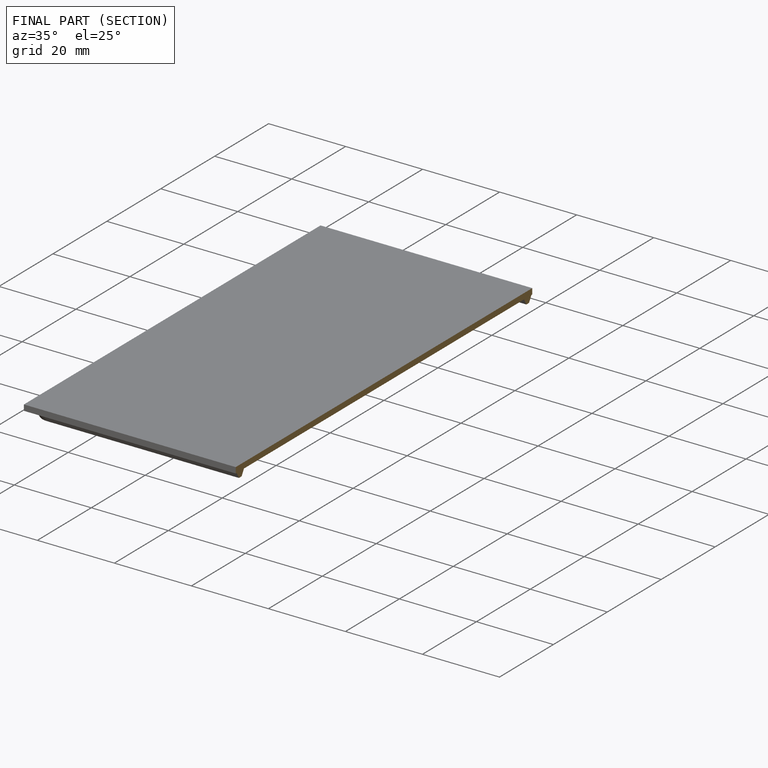
[diagram: finished part — half-section view (interior)]
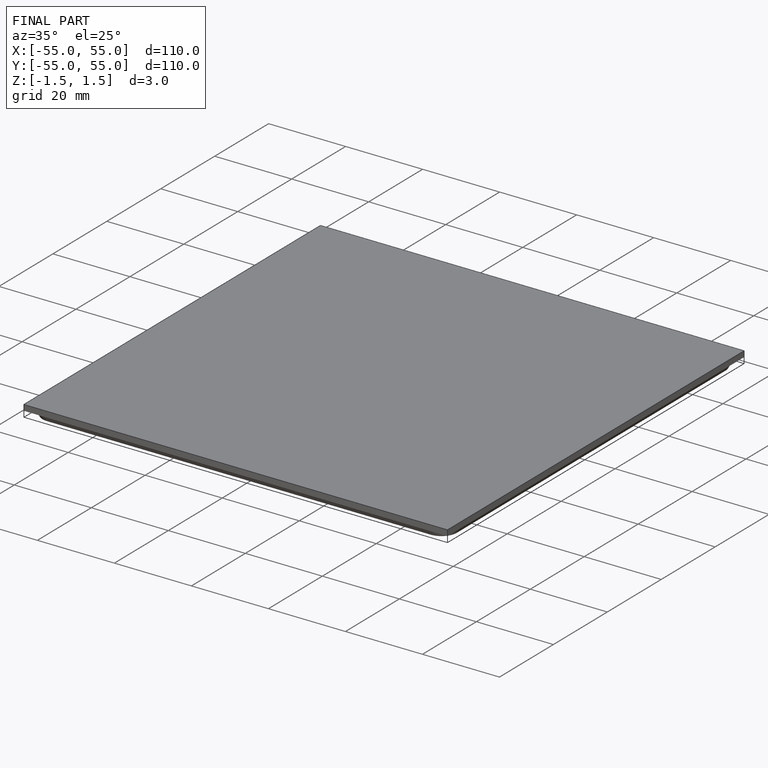
[diagram: finished part — iso view with bounding-box wireframe]
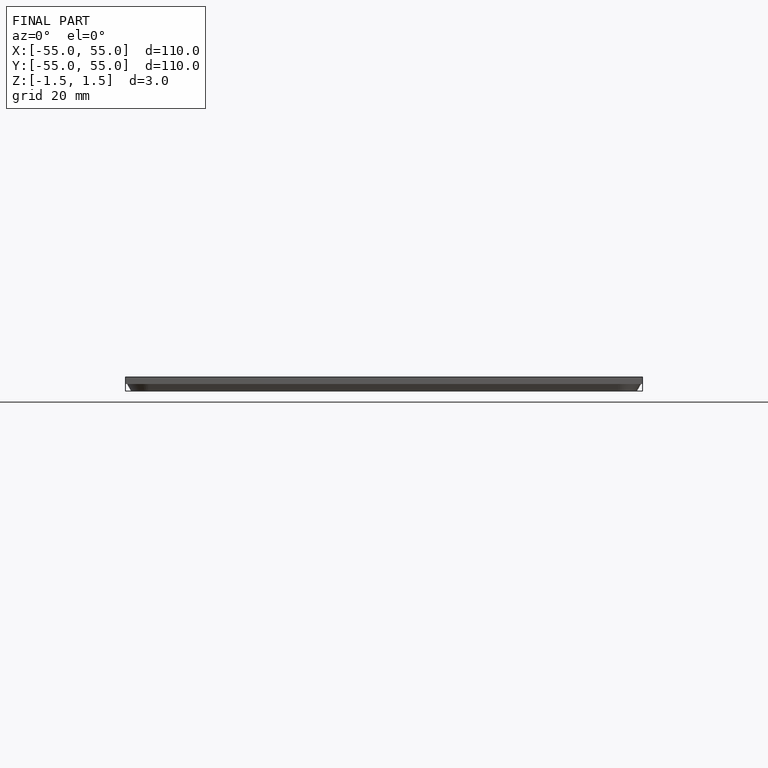
[diagram: finished part — front view with bounding-box wireframe]
